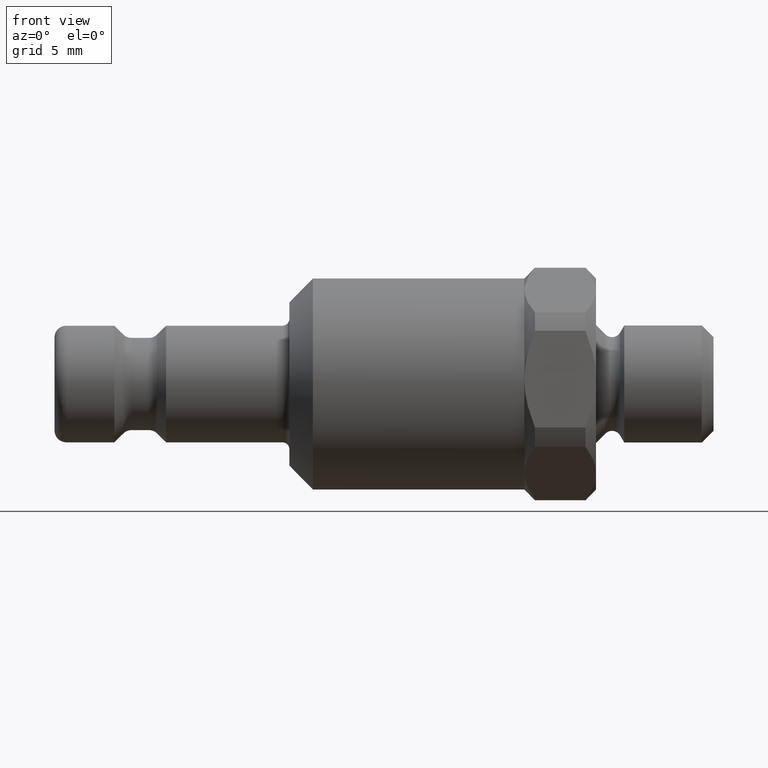
[diagram: clean part render]
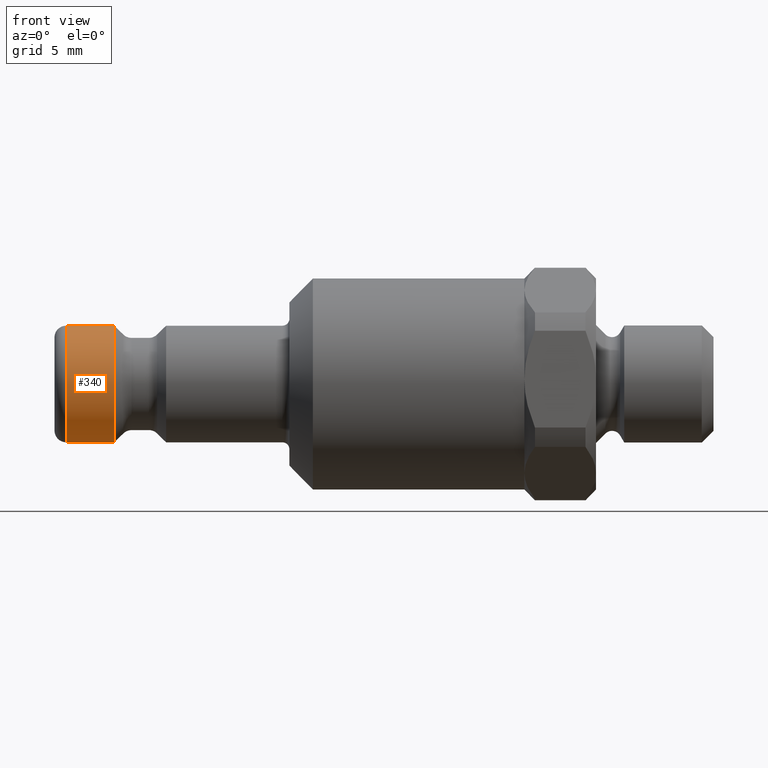
[diagram: same view with one face highlighted and labeled with its STEP entity id]
A machine part, front view. The second image highlights one B-rep face of the part: STEP entity #340.
In plain terms, the highlighted cylindrical surface (bore or boss wall) has radius 2.5 mm, axis along (1, 0, 0).
Its self-contained STEP definition (entity closure, byte-faithful):
#309=CARTESIAN_POINT('',(2.549999999999999,2.5,0.0));
#310=VERTEX_POINT('',#309);
#311=CARTESIAN_POINT('',(2.549999999999999,0.0,0.0));
#312=DIRECTION('',(1.0,0.0,0.0));
#313=DIRECTION('',(0.0,1.0,0.0));
#314=AXIS2_PLACEMENT_3D('',#311,#312,#313);
#315=CIRCLE('',#314,2.5);
#316=EDGE_CURVE('',#310,#310,#315,.T.);
#321=CARTESIAN_POINT('',(1.524999999999999,0.0,0.0));
#322=DIRECTION('',(1.0,0.0,0.0));
#323=DIRECTION('',(0.0,1.0,0.0));
#324=AXIS2_PLACEMENT_3D('',#321,#322,#323);
#325=CYLINDRICAL_SURFACE('',#324,2.5);
#326=ORIENTED_EDGE('',*,*,#316,.F.);
#327=EDGE_LOOP('',(#326));
#328=FACE_OUTER_BOUND('',#327,.T.);
#329=CARTESIAN_POINT('',(0.5,2.5,0.0));
#330=VERTEX_POINT('',#329);
#331=CARTESIAN_POINT('',(0.5,0.0,0.0));
#332=DIRECTION('',(1.0,0.0,0.0));
#333=DIRECTION('',(0.0,1.0,0.0));
#334=AXIS2_PLACEMENT_3D('',#331,#332,#333);
#335=CIRCLE('',#334,2.5);
#336=EDGE_CURVE('',#330,#330,#335,.T.);
#337=ORIENTED_EDGE('',*,*,#336,.T.);
#338=EDGE_LOOP('',(#337));
#339=FACE_BOUND('',#338,.T.);
#340=ADVANCED_FACE('',(#328,#339),#325,.T.);